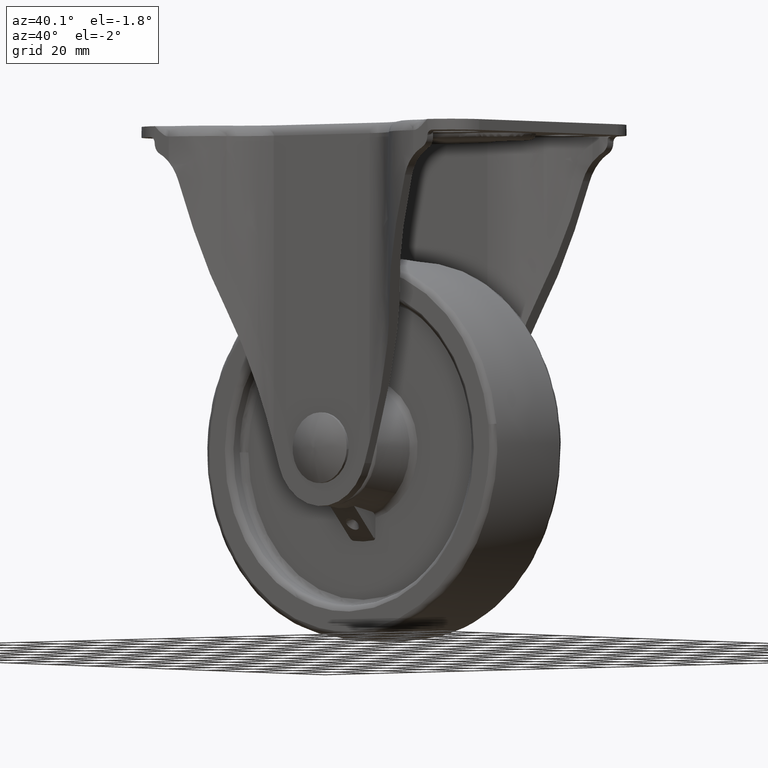
[diagram: clean part render]
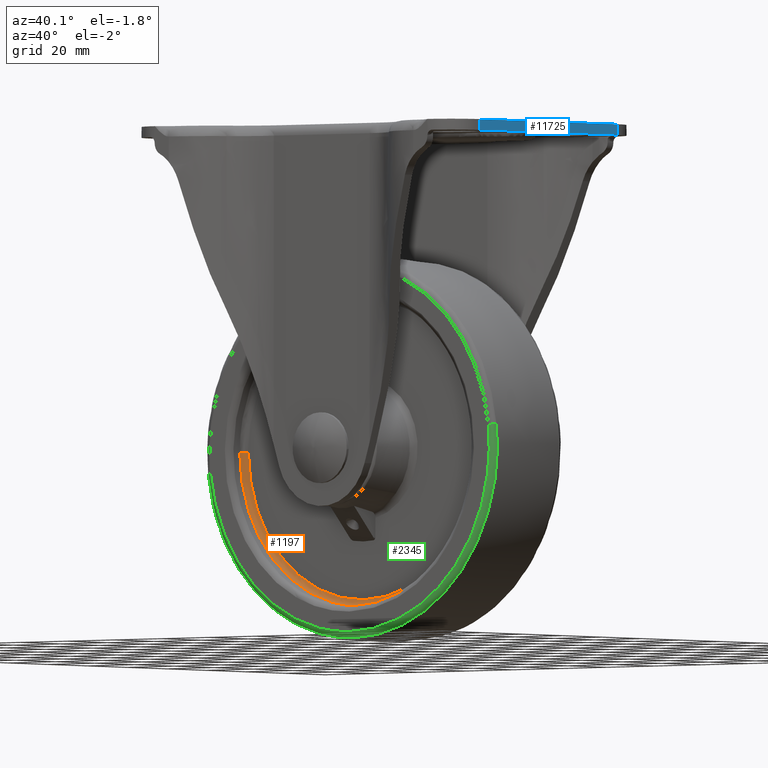
[diagram: same view with three faces highlighted in distinct colors, each labeled with its STEP entity id]
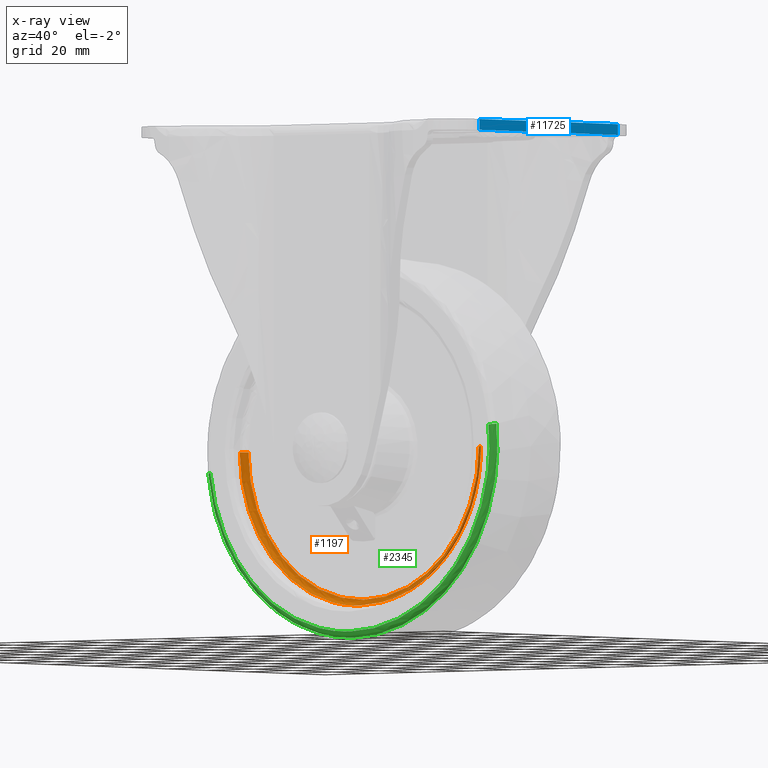
[diagram: x-ray of the same camera — body ghosted, the three highlighted faces saturated]
A machine part, auxiliary view with three faces highlighted in distinct colors.
The next image is the same camera in x-ray (body ghosted, the three faces saturated) — at least one of them is partly hidden behind the body in this view.
Their STEP definitions:

[orange] entity #1197 — the highlighted face is a freeform B-spline surface patch.
#549=CARTESIAN_POINT('',(0.0,-10.319396999999981,-48.999992999999897));
#550=VERTEX_POINT('',#549);
#551=CARTESIAN_POINT('',(48.999986000767862,-10.319396999999981,-0.000007000000099));
#552=VERTEX_POINT('',#551);
#553=CARTESIAN_POINT('',(0.0,-10.319396999999981,-48.999992999999897));
#554=CARTESIAN_POINT('',(48.999986000383835,-10.319396999999981,-48.999992999999897));
#555=CARTESIAN_POINT('',(48.999986000767862,-10.319396999999981,-0.000007000000099));
#563=(BOUNDED_CURVE()B_SPLINE_CURVE(2,(#553,#554,#555),.UNSPECIFIED.,.F.,.U.)B_SPLINE_CURVE_WITH_KNOTS((3,3),(0.0,0.250000000000000),.UNSPECIFIED.)CURVE()GEOMETRIC_REPRESENTATION_ITEM()RATIONAL_B_SPLINE_CURVE((1.0,0.707106781186547,1.0))REPRESENTATION_ITEM(''));
#564=EDGE_CURVE('',#550,#552,#563,.T.);
#581=CARTESIAN_POINT('',(-48.999986000767862,-10.319396999999981,-0.000007000000092));
#582=VERTEX_POINT('',#581);
#596=CARTESIAN_POINT('',(-48.999986000767862,-10.319396999999981,-0.000007000000092));
#597=CARTESIAN_POINT('',(-48.999986000383835,-10.319396999999981,-48.999992999999897));
#598=CARTESIAN_POINT('',(0.0,-10.319396999999981,-48.999992999999897));
#606=(BOUNDED_CURVE()B_SPLINE_CURVE(2,(#596,#597,#598),.UNSPECIFIED.,.F.,.U.)B_SPLINE_CURVE_WITH_KNOTS((3,3),(0.750000000000000,1.0),.UNSPECIFIED.)CURVE()GEOMETRIC_REPRESENTATION_ITEM()RATIONAL_B_SPLINE_CURVE((1.0,0.707106781186547,1.0))REPRESENTATION_ITEM(''));
#607=EDGE_CURVE('',#582,#550,#606,.T.);
#1041=CARTESIAN_POINT('',(50.999985999999787,-12.319396997944880,-0.000007000000114));
#1042=VERTEX_POINT('',#1041);
#1073=CARTESIAN_POINT('',(-50.999985999999787,-12.319396997944880,-0.000007000000078));
#1074=VERTEX_POINT('',#1073);
#1088=CARTESIAN_POINT('',(-48.999986000767855,-10.319396999999981,-0.000007000000089));
#1089=CARTESIAN_POINT('',(-50.999985997944677,-10.319397000768053,-0.000007000000088));
#1090=CARTESIAN_POINT('',(-50.999985999999787,-12.319396997944880,-0.000007000000089));
#1098=(BOUNDED_CURVE()B_SPLINE_CURVE(2,(#1088,#1089,#1090),.UNSPECIFIED.,.F.,.U.)B_SPLINE_CURVE_WITH_KNOTS((3,3),(-1.736413120674707,-0.276558719073186),.UNSPECIFIED.)CURVE()GEOMETRIC_REPRESENTATION_ITEM()RATIONAL_B_SPLINE_CURVE((0.888510408919954,0.626638727497360,0.883897566765794))REPRESENTATION_ITEM(''));
#1099=EDGE_CURVE('',#582,#1074,#1098,.T.);
#1103=CARTESIAN_POINT('',(48.999986000767869,-10.319396999999981,-0.000007000000103));
#1104=CARTESIAN_POINT('',(50.999985997944691,-10.319397000768060,-0.000007000000102));
#1105=CARTESIAN_POINT('',(50.999985999999794,-12.319396997944887,-0.000007000000103));
#1113=(BOUNDED_CURVE()B_SPLINE_CURVE(2,(#1103,#1104,#1105),.UNSPECIFIED.,.F.,.U.)B_SPLINE_CURVE_WITH_KNOTS((3,3),(-1.736413120674703,-0.276558719073186),.UNSPECIFIED.)CURVE()GEOMETRIC_REPRESENTATION_ITEM()RATIONAL_B_SPLINE_CURVE((0.888510408919953,0.626638727497360,0.883897566765794))REPRESENTATION_ITEM(''));
#1114=EDGE_CURVE('',#552,#1042,#1113,.T.);
#1119=CARTESIAN_POINT('',(-48.861284849070472,-10.324212299093601,1.365995123812510));
#1120=CARTESIAN_POINT('',(-48.861284849070465,-10.324212299093601,0.686971689095093));
#1121=CARTESIAN_POINT('',(-48.861284849070486,-10.324212299093602,-48.861291849070547));
#1122=CARTESIAN_POINT('',(-5.983584E-015,-10.324212299093601,-48.861291849070561));
#1123=CARTESIAN_POINT('',(48.861284849070451,-10.324212299093602,-48.861291849070568));
#1124=CARTESIAN_POINT('',(48.861284849070465,-10.324212299093599,0.686971689095096));
#1125=CARTESIAN_POINT('',(48.861284849070465,-10.324212299093599,1.365995123812529));
#1126=CARTESIAN_POINT('',(-51.155464543839727,-10.164725629033128,1.430132903757161));
#1127=CARTESIAN_POINT('',(-51.155464543839742,-10.164725629033127,0.719227340253873));
#1128=CARTESIAN_POINT('',(-51.155464543839734,-10.164725629033127,-51.155471543839802));
#1129=CARTESIAN_POINT('',(-6.264531E-015,-10.164725629033128,-51.155471543839823));
#1130=CARTESIAN_POINT('',(51.155464543839713,-10.164725629033127,-51.155471543839802));
#1131=CARTESIAN_POINT('',(51.155464543839727,-10.164725629033127,0.719227340253876));
#1132=CARTESIAN_POINT('',(51.155464543839734,-10.164725629033128,1.430132903757180));
#1133=CARTESIAN_POINT('',(-50.995118611118308,-12.458845427927299,1.425650154576112));
#1134=CARTESIAN_POINT('',(-50.995118611118308,-12.458845427927292,0.716972912458882));
#1135=CARTESIAN_POINT('',(-50.995118611118301,-12.458845427927296,-50.995125611118397));
#1136=CARTESIAN_POINT('',(-6.244895E-015,-12.458845427927299,-50.995125611118404));
#1137=CARTESIAN_POINT('',(50.995118611118301,-12.458845427927296,-50.995125611118397));
#1138=CARTESIAN_POINT('',(50.995118611118301,-12.458845427927290,0.716972912458885));
#1139=CARTESIAN_POINT('',(50.995118611118322,-12.458845427927296,1.425650154576130));
#1147=(BOUNDED_SURFACE()B_SPLINE_SURFACE(2,2,((#1119,#1126,#1133),(#1120,#1127,#1134),(#1121,#1128,#1135),(#1122,#1129,#1136),(#1123,#1130,#1137),(#1124,#1131,#1138),(#1125,#1132,#1139)),.UNSPECIFIED.,.F.,.F.,.U.)B_SPLINE_SURFACE_WITH_KNOTS((3,1,2,1,3),(3,3),(0.0,1.689829579483950,86.181308553683280,170.672787527882600,172.362617107366590),(0.0,3.645454353994062),.UNSPECIFIED.)GEOMETRIC_REPRESENTATION_ITEM()RATIONAL_B_SPLINE_SURFACE(((0.926697838400259,0.606435486919035,0.921564728292852),(0.921332230155912,0.602924207283492,0.916228840909793),(0.647686209694202,0.423848945870745,0.644098584373797),(0.915966621911565,0.599412927647948,0.910892953526734),(0.647686209694202,0.423848945870745,0.644098584373797),(0.921332230155912,0.602924207283492,0.916228840909793),(0.926697838400259,0.606435486919036,0.921564728292852)))REPRESENTATION_ITEM('')SURFACE());
#1148=CARTESIAN_POINT('',(35.106071884492707,-12.319396999010539,-36.994091511459473));
#1149=VERTEX_POINT('',#1148);
#1150=CARTESIAN_POINT('',(35.106071884492749,-12.319396999010467,-36.994091511459523));
#1151=CARTESIAN_POINT('',(50.999985999999787,-12.319396998386352,-21.911331690977843));
#1152=CARTESIAN_POINT('',(50.999985999999794,-12.319396997944883,-0.000007000000114));
#1160=(BOUNDED_CURVE()B_SPLINE_CURVE(2,(#1150,#1151,#1152),.UNSPECIFIED.,.F.,.U.)B_SPLINE_CURVE_WITH_KNOTS((3,3),(0.121049519157340,0.250000000000000),.UNSPECIFIED.)CURVE()GEOMETRIC_REPRESENTATION_ITEM()RATIONAL_B_SPLINE_CURVE((0.853699661924958,0.848925114393803,1.000000000000000))REPRESENTATION_ITEM(''));
#1161=EDGE_CURVE('',#1149,#1042,#1160,.T.);
#1162=ORIENTED_EDGE('',*,*,#1161,.T.);
#1163=ORIENTED_EDGE('',*,*,#1114,.F.);
#1164=ORIENTED_EDGE('',*,*,#564,.F.);
#1165=ORIENTED_EDGE('',*,*,#607,.F.);
#1166=ORIENTED_EDGE('',*,*,#1099,.T.);
#1167=CARTESIAN_POINT('',(0.0,-12.319396999999981,-50.999992999999897));
#1168=VERTEX_POINT('',#1167);
#1169=CARTESIAN_POINT('',(-50.999985999999822,-12.319396997944891,-0.000007000000078));
#1170=CARTESIAN_POINT('',(-50.999985999999836,-12.319396998972433,-50.999992999999911));
#1171=CARTESIAN_POINT('',(0.0,-12.319396999999981,-50.999992999999897));
#1179=(BOUNDED_CURVE()B_SPLINE_CURVE(2,(#1169,#1170,#1171),.UNSPECIFIED.,.F.,.U.)B_SPLINE_CURVE_WITH_KNOTS((3,3),(0.750000000000000,1.0),.UNSPECIFIED.)CURVE()GEOMETRIC_REPRESENTATION_ITEM()RATIONAL_B_SPLINE_CURVE((1.0,0.707106781186547,1.0))REPRESENTATION_ITEM(''));
#1180=EDGE_CURVE('',#1074,#1168,#1179,.T.);
#1181=ORIENTED_EDGE('',*,*,#1180,.T.);
#1182=CARTESIAN_POINT('',(0.0,-12.319396999999981,-50.999992999999897));
#1183=CARTESIAN_POINT('',(20.346929789899391,-12.319396999590026,-50.999992999999897));
#1184=CARTESIAN_POINT('',(35.106071884492749,-12.319396999010467,-36.994091511459523));
#1192=(BOUNDED_CURVE()B_SPLINE_CURVE(2,(#1182,#1183,#1184),.UNSPECIFIED.,.F.,.U.)B_SPLINE_CURVE_WITH_KNOTS((3,3),(0.0,0.121049519157340),.UNSPECIFIED.)CURVE()GEOMETRIC_REPRESENTATION_ITEM()RATIONAL_B_SPLINE_CURVE((1.0,0.858181666792744,0.853699661924958))REPRESENTATION_ITEM(''));
#1193=EDGE_CURVE('',#1168,#1149,#1192,.T.);
#1194=ORIENTED_EDGE('',*,*,#1193,.T.);
#1195=EDGE_LOOP('',(#1162,#1163,#1164,#1165,#1166,#1181,#1194));
#1196=FACE_OUTER_BOUND('',#1195,.T.);
#1197=ADVANCED_FACE('',(#1196),#1147,.F.);

[blue] entity #11725 — the highlighted face is a freeform B-spline surface patch.
#8084=CARTESIAN_POINT('',(69.999995999999996,35.0,102.0));
#8085=VERTEX_POINT('',#8084);
#8099=CARTESIAN_POINT('',(69.999996000000095,-35.0,102.0));
#8100=VERTEX_POINT('',#8099);
#8101=CARTESIAN_POINT('',(69.999995999999996,35.0,102.0));
#8102=CARTESIAN_POINT('',(69.999996000000095,-35.0,102.0));
#8103=QUASI_UNIFORM_CURVE('',1,(#8101,#8102),.UNSPECIFIED.,.F.,.U.);
#8104=EDGE_CURVE('',#8085,#8100,#8103,.T.);
#11698=CARTESIAN_POINT('',(69.999996000000095,-38.496499864326417,101.825175006783700));
#11699=CARTESIAN_POINT('',(69.999996000000095,-38.496499864326417,105.674825087093590));
#11700=CARTESIAN_POINT('',(69.999996000000095,38.496501741872727,101.825175006783700));
#11701=CARTESIAN_POINT('',(69.999996000000095,38.496501741872727,105.674825087093590));
#11702=B_SPLINE_SURFACE_WITH_KNOTS('',1,1,((#11698,#11700),(#11699,#11701)),.UNSPECIFIED.,.F.,.F.,.U.,(2,2),(2,2),(0.0,3.849650080309971),(0.0,76.993001606199158),.UNSPECIFIED.);
#11703=CARTESIAN_POINT('',(69.999995999999996,35.0,105.500000000000000));
#11704=VERTEX_POINT('',#11703);
#11705=CARTESIAN_POINT('',(69.999996000000095,-35.0,105.500000000000000));
#11706=VERTEX_POINT('',#11705);
#11707=CARTESIAN_POINT('',(69.999995999999996,35.0,105.500000000000000));
#11708=CARTESIAN_POINT('',(69.999996000000095,-35.0,105.500000000000000));
#11709=QUASI_UNIFORM_CURVE('',1,(#11707,#11708),.UNSPECIFIED.,.F.,.U.);
#11710=EDGE_CURVE('',#11704,#11706,#11709,.T.);
#11711=ORIENTED_EDGE('',*,*,#11710,.T.);
#11712=CARTESIAN_POINT('',(69.999996000000095,-35.0,102.0));
#11713=CARTESIAN_POINT('',(69.999996000000095,-35.0,105.500000000000000));
#11714=QUASI_UNIFORM_CURVE('',1,(#11712,#11713),.UNSPECIFIED.,.F.,.U.);
#11715=EDGE_CURVE('',#8100,#11706,#11714,.T.);
#11716=ORIENTED_EDGE('',*,*,#11715,.F.);
#11717=ORIENTED_EDGE('',*,*,#8104,.F.);
#11718=CARTESIAN_POINT('',(69.999995999999996,35.0,102.0));
#11719=CARTESIAN_POINT('',(69.999995999999996,35.0,105.500000000000000));
#11720=QUASI_UNIFORM_CURVE('',1,(#11718,#11719),.UNSPECIFIED.,.F.,.U.);
#11721=EDGE_CURVE('',#8085,#11704,#11720,.T.);
#11722=ORIENTED_EDGE('',*,*,#11721,.T.);
#11723=EDGE_LOOP('',(#11711,#11716,#11717,#11722));
#11724=FACE_OUTER_BOUND('',#11723,.T.);
#11725=ADVANCED_FACE('',(#11724),#11702,.F.);

[green] entity #2345 — the highlighted face is a freeform B-spline surface patch.
#2179=CARTESIAN_POINT('',(0.0,-17.500000000000000,-59.519462999999888));
#2180=VERTEX_POINT('',#2179);
#2181=CARTESIAN_POINT('',(59.139204700566793,-17.500000000000000,6.717143636891096));
#2182=VERTEX_POINT('',#2181);
#2183=CARTESIAN_POINT('',(0.0,-17.500000000000000,-59.519462999999888));
#2184=CARTESIAN_POINT('',(59.519456010278049,-17.499999999999996,-59.519462998832466));
#2185=CARTESIAN_POINT('',(59.519456021789807,-17.500000000000000,-0.000006997525138));
#2186=CARTESIAN_POINT('',(59.519456022441481,-17.499999999999993,3.369331147268339));
#2187=CARTESIAN_POINT('',(59.139204700566786,-17.500000000000000,6.717143636891096));
#2195=(BOUNDED_CURVE()B_SPLINE_CURVE(2,(#2183,#2184,#2185,#2186,#2187),.UNSPECIFIED.,.F.,.U.)B_SPLINE_CURVE_WITH_KNOTS((3,2,3),(0.0,0.250000000000000,0.269555763444728),.UNSPECIFIED.)CURVE()GEOMETRIC_REPRESENTATION_ITEM()RATIONAL_B_SPLINE_CURVE((1.0,0.707106781186548,1.0,0.977088997993277,0.957762333070755))REPRESENTATION_ITEM(''));
#2196=EDGE_CURVE('',#2180,#2182,#2195,.T.);
#2213=CARTESIAN_POINT('',(-59.139204700566800,-17.500000000000000,-6.717157636891297));
#2214=VERTEX_POINT('',#2213);
#2230=CARTESIAN_POINT('',(-59.139204700566800,-17.500000000000000,-6.717157636891297));
#2231=CARTESIAN_POINT('',(-53.141811911919916,-17.499999999999989,-59.519463001307429));
#2232=CARTESIAN_POINT('',(0.0,-17.500000000000000,-59.519462999999888));
#2240=(BOUNDED_CURVE()B_SPLINE_CURVE(2,(#2230,#2231,#2232),.UNSPECIFIED.,.F.,.U.)B_SPLINE_CURVE_WITH_KNOTS((3,3),(0.769555763444728,1.0),.UNSPECIFIED.)CURVE()GEOMETRIC_REPRESENTATION_ITEM()RATIONAL_B_SPLINE_CURVE((0.957762333070755,0.730017783193271,1.0))REPRESENTATION_ITEM(''));
#2241=EDGE_CURVE('',#2214,#2180,#2240,.T.);
#2252=CARTESIAN_POINT('',(-61.316804409234585,-15.622168572305190,-5.233657161206788));
#2253=CARTESIAN_POINT('',(-61.220325555564486,-15.622168572305187,-6.083077247984249));
#2254=CARTESIAN_POINT('',(-54.180274471719223,-15.622168572305187,-68.065165291909707));
#2255=CARTESIAN_POINT('',(6.942441910095187,-15.622168572305194,-61.122723381814509));
#2256=CARTESIAN_POINT('',(68.065158291909597,-15.622168572305187,-54.180281471719326));
#2257=CARTESIAN_POINT('',(61.025107208035593,-15.622168572305192,7.801806572459550));
#2258=CARTESIAN_POINT('',(60.928628354337363,-15.622168572305188,8.651226659484584));
#2259=CARTESIAN_POINT('',(-61.194533946465938,-17.626580162520696,-5.223220856944927));
#2260=CARTESIAN_POINT('',(-61.098247479111436,-17.626580162520693,-6.070947134201557));
#2261=CARTESIAN_POINT('',(-54.072234803044140,-17.626580162520693,-67.929438088201735));
#2262=CARTESIAN_POINT('',(6.928598142578759,-17.626580162520689,-61.000839945622999));
#2263=CARTESIAN_POINT('',(67.929431088201625,-17.626580162520693,-54.072241803044243));
#2264=CARTESIAN_POINT('',(60.903418412105616,-17.626580162520689,7.786249151208880));
#2265=CARTESIAN_POINT('',(60.807131944723047,-17.626580162520685,8.633975428712589));
#2266=CARTESIAN_POINT('',(-59.197118319515290,-17.495751139883684,-5.052732934120091));
#2267=CARTESIAN_POINT('',(-59.103974683426173,-17.495751139883680,-5.872789064970338));
#2268=CARTESIAN_POINT('',(-52.307294050750308,-17.495751139883691,-65.712192552773047));
#2269=CARTESIAN_POINT('',(6.702445751011319,-17.495751139883676,-59.009746801761729));
#2270=CARTESIAN_POINT('',(65.712185552772965,-17.495751139883691,-52.307301050750411));
#2271=CARTESIAN_POINT('',(58.915504920069317,-17.495751139883680,7.532102437296964));
#2272=CARTESIAN_POINT('',(58.822361283953050,-17.495751139883684,8.352158568386225));
#2280=(BOUNDED_SURFACE()B_SPLINE_SURFACE(2,2,((#2252,#2259,#2266),(#2253,#2260,#2267),(#2254,#2261,#2268),(#2255,#2262,#2269),(#2256,#2263,#2270),(#2257,#2264,#2271),(#2258,#2265,#2272)),.UNSPECIFIED.,.F.,.F.,.U.)B_SPLINE_SURFACE_WITH_KNOTS((3,1,2,1,3),(3,3),(0.0,2.038451682359018,103.961035801018200,205.883619919677390,207.922071602641100),(0.0,3.323986090125402),.UNSPECIFIED.)GEOMETRIC_REPRESENTATION_ITEM()RATIONAL_B_SPLINE_SURFACE(((0.928271098397824,0.655137777381760,0.928523112431476),(0.922896380931000,0.651344510025546,0.923146935795847),(0.648785790121080,0.457887874857259,0.648961927376916),(0.917521663464175,0.647551242669330,0.917770759160218),(0.648785790121080,0.457887874857259,0.648961927376916),(0.922896380932594,0.651344510026671,0.923146935797442),(0.928271098401013,0.655137777384011,0.928523112434665)))REPRESENTATION_ITEM('')SURFACE());
#2281=CARTESIAN_POINT('',(-61.110587326511009,-15.752005250437930,-6.941071267447661));
#2282=VERTEX_POINT('',#2281);
#2283=CARTESIAN_POINT('',(0.0,-15.751997212653080,-61.503525167381710));
#2284=VERTEX_POINT('',#2283);
#2285=CARTESIAN_POINT('',(-61.110587326511009,-15.752005250437923,-6.941071267447661));
#2286=CARTESIAN_POINT('',(-54.913274671722675,-15.751997315580399,-61.503525258196348));
#2287=CARTESIAN_POINT('',(0.0,-15.751997212653080,-61.503525167381710));
#2295=(BOUNDED_CURVE()B_SPLINE_CURVE(2,(#2285,#2286,#2287),.UNSPECIFIED.,.F.,.U.)B_SPLINE_CURVE_WITH_KNOTS((3,3),(0.769555758119934,1.0),.UNSPECIFIED.)CURVE()GEOMETRIC_REPRESENTATION_ITEM()RATIONAL_B_SPLINE_CURVE((0.957762343595581,0.730017776954887,1.0))REPRESENTATION_ITEM(''));
#2296=EDGE_CURVE('',#2282,#2284,#2295,.T.);
#2297=ORIENTED_EDGE('',*,*,#2296,.T.);
#2298=CARTESIAN_POINT('',(61.110587037137307,-15.752007247781989,6.941057234579802));
#2299=VERTEX_POINT('',#2298);
#2300=CARTESIAN_POINT('',(0.0,-15.751997212653080,-61.503525167381710));
#2301=CARTESIAN_POINT('',(61.503513081776170,-15.751997306647162,-61.503525084436738));
#2302=CARTESIAN_POINT('',(61.503513899681671,-15.752006240176520,-0.000008278121476));
#2303=CARTESIAN_POINT('',(61.503513945982505,-15.752006745894946,3.481646085850575));
#2304=CARTESIAN_POINT('',(61.110587037137307,-15.752007247781982,6.941057234579802));
#2312=(BOUNDED_CURVE()B_SPLINE_CURVE(2,(#2300,#2301,#2302,#2303,#2304),.UNSPECIFIED.,.F.,.U.)B_SPLINE_CURVE_WITH_KNOTS((3,2,3),(0.0,0.250000000000000,0.269555766073896),.UNSPECIFIED.)CURVE()GEOMETRIC_REPRESENTATION_ITEM()RATIONAL_B_SPLINE_CURVE((1.0,0.707106781186547,1.0,0.977088994913015,0.957762327874021))REPRESENTATION_ITEM(''));
#2313=EDGE_CURVE('',#2284,#2299,#2312,.T.);
#2314=ORIENTED_EDGE('',*,*,#2313,.T.);
#2315=CARTESIAN_POINT('',(61.110587037137307,-15.752007247781989,6.941057234579803));
#2316=CARTESIAN_POINT('',(60.889983140858874,-17.499999875018894,6.916000597516234));
#2317=CARTESIAN_POINT('',(59.139204700566786,-17.500000000000004,6.717143636891096));
#2325=(BOUNDED_CURVE()B_SPLINE_CURVE(2,(#2315,#2316,#2317),.UNSPECIFIED.,.F.,.U.)B_SPLINE_CURVE_WITH_KNOTS((3,3),(-1.716201423093049,-0.283065984927039),.UNSPECIFIED.)CURVE()GEOMETRIC_REPRESENTATION_ITEM()RATIONAL_B_SPLINE_CURVE((0.894113495600437,0.670969834090634,0.894341745994139))REPRESENTATION_ITEM(''));
#2326=EDGE_CURVE('',#2299,#2182,#2325,.T.);
#2327=ORIENTED_EDGE('',*,*,#2326,.T.);
#2328=ORIENTED_EDGE('',*,*,#2196,.F.);
#2329=ORIENTED_EDGE('',*,*,#2241,.F.);
#2330=CARTESIAN_POINT('',(-61.110587326511009,-15.752005250437925,-6.941071267447661));
#2331=CARTESIAN_POINT('',(-60.889984940051441,-17.499999877365951,-6.916014801872375));
#2332=CARTESIAN_POINT('',(-59.139204700566800,-17.500000000000004,-6.717157636891297));
#2340=(BOUNDED_CURVE()B_SPLINE_CURVE(2,(#2330,#2331,#2332),.UNSPECIFIED.,.F.,.U.)B_SPLINE_CURVE_WITH_KNOTS((3,3),(-1.716202516746545,-0.283065984927044),.UNSPECIFIED.)CURVE()GEOMETRIC_REPRESENTATION_ITEM()RATIONAL_B_SPLINE_CURVE((0.894113836171224,0.670969663631189,0.894341745994137))REPRESENTATION_ITEM(''));
#2341=EDGE_CURVE('',#2282,#2214,#2340,.T.);
#2342=ORIENTED_EDGE('',*,*,#2341,.F.);
#2343=EDGE_LOOP('',(#2297,#2314,#2327,#2328,#2329,#2342));
#2344=FACE_OUTER_BOUND('',#2343,.T.);
#2345=ADVANCED_FACE('',(#2344),#2280,.T.);